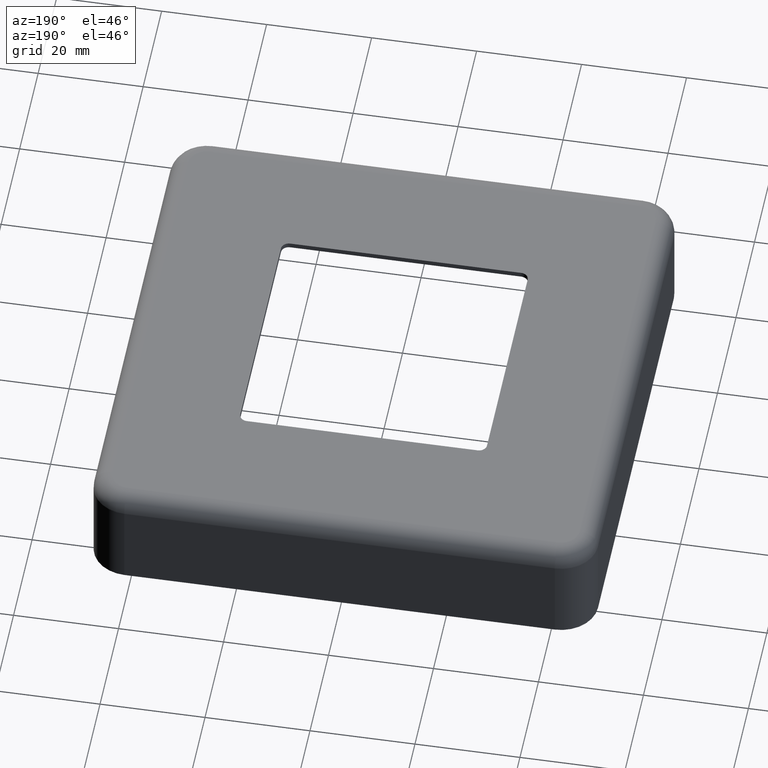
[diagram: clean part render]
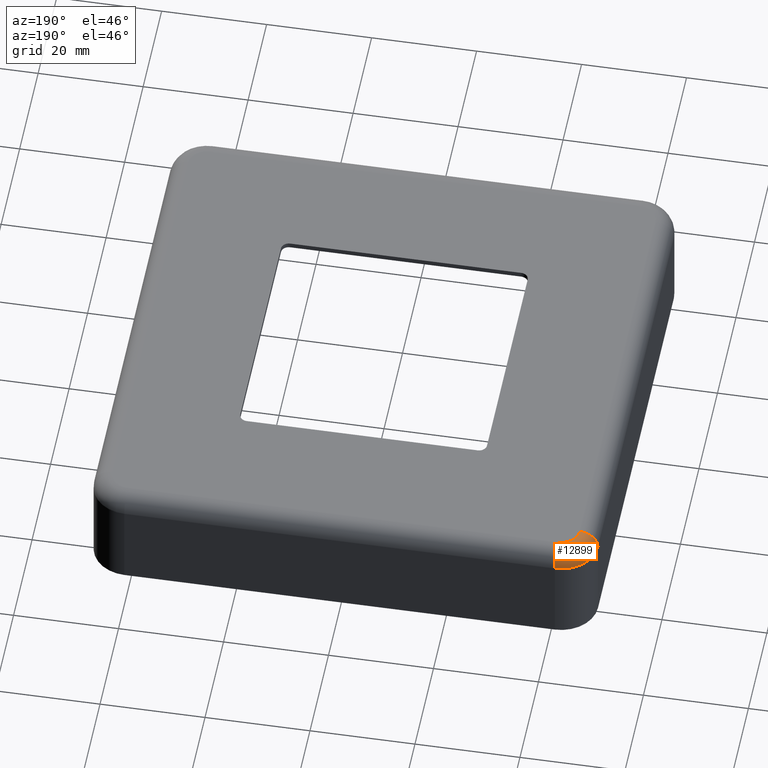
[diagram: same view with one face highlighted and labeled with its STEP entity id]
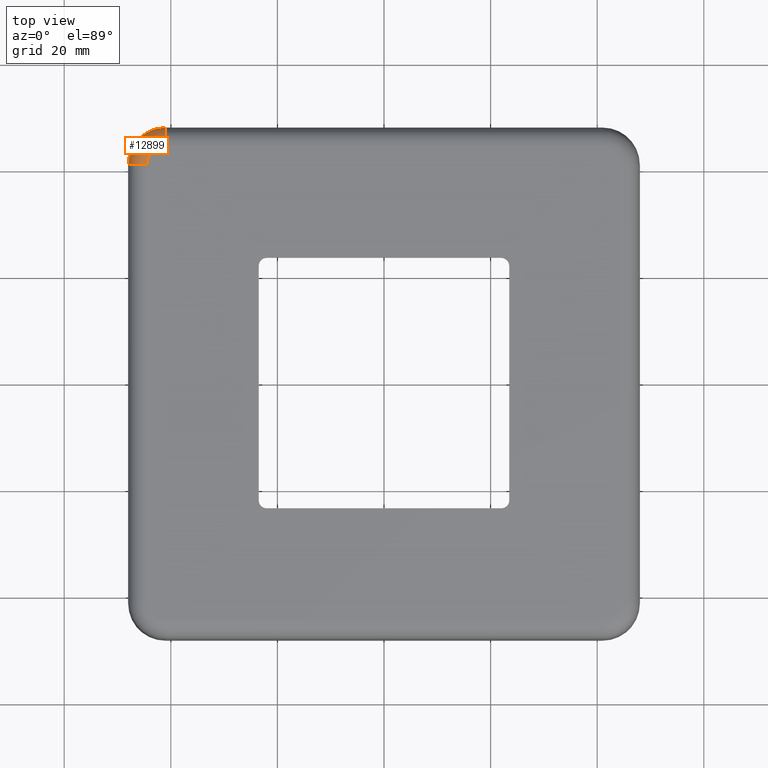
[diagram: same view with one face highlighted and labeled with its STEP entity id]
A machine part, auxiliary view. The second image highlights one B-rep face of the part: STEP entity #12899.
A second angle (top view) of the same face is appended — the face is thin or edge-on in the first view.
In plain terms, the highlighted toroidal blend (fillet) surface has major radius 3.5 mm and minor (blend) radius 3.5 mm.
Its self-contained STEP definition (entity closure, byte-faithful):
#153 = DIRECTION ( 'NONE',  ( 0.000000000000000000, -1.000000000000000000, 0.000000000000000000 ) ) ;
#411 = CARTESIAN_POINT ( 'NONE',  ( -41.00000000000001421, 44.49999999999999289, 20.00000000000000000 ) ) ;
#1030 = ORIENTED_EDGE ( 'NONE', *, *, #13445, .T. ) ;
#1403 = EDGE_CURVE ( 'NONE', #11541, #9631, #4921, .T. ) ;
#1514 = CARTESIAN_POINT ( 'NONE',  ( -44.50000000000001421, 40.99999999999999289, 16.50000000000000000 ) ) ;
#1711 = DIRECTION ( 'NONE',  ( -0.000000000000000000, 0.000000000000000000, 1.000000000000000000 ) ) ;
#2720 = EDGE_LOOP ( 'NONE', ( #10245, #14233, #13993, #1030 ) ) ;
#2794 = CARTESIAN_POINT ( 'NONE',  ( -41.00000000000001421, 40.99999999999999289, 16.50000000000000000 ) ) ;
#3364 = VERTEX_POINT ( 'NONE', #411 ) ;
#3493 = CARTESIAN_POINT ( 'NONE',  ( -48.00000000000001421, 40.99999999999999289, 16.50000000000000000 ) ) ;
#4052 = AXIS2_PLACEMENT_3D ( 'NONE', #6801, #10368, #11373 ) ;
#4123 = CARTESIAN_POINT ( 'NONE',  ( -41.00000000000001421, 40.99999999999999289, 16.50000000000000000 ) ) ;
#4812 = CARTESIAN_POINT ( 'NONE',  ( -41.00000000000000711, 47.99999999999999289, 16.50000000000000000 ) ) ;
#4921 = CIRCLE ( 'NONE', #10819, 3.499999999999999556 ) ;
#5624 = AXIS2_PLACEMENT_3D ( 'NONE', #2794, #1711, #10850 ) ;
#6425 = AXIS2_PLACEMENT_3D ( 'NONE', #6843, #10224, #7948 ) ;
#6801 = CARTESIAN_POINT ( 'NONE',  ( -41.00000000000001421, 44.49999999999999289, 16.50000000000000000 ) ) ;
#6843 = CARTESIAN_POINT ( 'NONE',  ( -41.00000000000001421, 40.99999999999999289, 20.00000000000000000 ) ) ;
#7195 = EDGE_CURVE ( 'NONE', #11588, #3364, #14025, .T. ) ;
#7307 = CIRCLE ( 'NONE', #6425, 3.500000000000003109 ) ;
#7948 = DIRECTION ( 'NONE',  ( 1.000000000000000000, 0.000000000000000000, 0.000000000000000000 ) ) ;
#8054 = AXIS2_PLACEMENT_3D ( 'NONE', #4123, #13144, #8715 ) ;
#8715 = DIRECTION ( 'NONE',  ( 1.000000000000000000, 0.000000000000000000, 0.000000000000000000 ) ) ;
#9548 = DIRECTION ( 'NONE',  ( 0.000000000000000000, 0.000000000000000000, -1.000000000000000000 ) ) ;
#9631 = VERTEX_POINT ( 'NONE', #3493 ) ;
#10184 = EDGE_CURVE ( 'NONE', #11588, #9631, #12207, .T. ) ;
#10224 = DIRECTION ( 'NONE',  ( 0.000000000000000000, -0.000000000000000000, -1.000000000000000000 ) ) ;
#10245 = ORIENTED_EDGE ( 'NONE', *, *, #7195, .F. ) ;
#10368 = DIRECTION ( 'NONE',  ( 1.000000000000000000, 0.000000000000000000, 0.000000000000000000 ) ) ;
#10460 = CARTESIAN_POINT ( 'NONE',  ( -44.50000000000001421, 40.99999999999998579, 20.00000000000000000 ) ) ;
#10819 = AXIS2_PLACEMENT_3D ( 'NONE', #1514, #153, #9548 ) ;
#10850 = DIRECTION ( 'NONE',  ( 1.000000000000000000, 0.000000000000000000, 0.000000000000000000 ) ) ;
#11098 = FACE_OUTER_BOUND ( 'NONE', #2720, .T. ) ;
#11373 = DIRECTION ( 'NONE',  ( 0.000000000000000000, 0.000000000000000000, -1.000000000000000000 ) ) ;
#11541 = VERTEX_POINT ( 'NONE', #10460 ) ;
#11588 = VERTEX_POINT ( 'NONE', #4812 ) ;
#12207 = CIRCLE ( 'NONE', #5624, 6.999999999999999112 ) ;
#12899 = ADVANCED_FACE ( 'NONE', ( #11098 ), #14700, .T. ) ;
#13144 = DIRECTION ( 'NONE',  ( -0.000000000000000000, 0.000000000000000000, 1.000000000000000000 ) ) ;
#13445 = EDGE_CURVE ( 'NONE', #11541, #3364, #7307, .T. ) ;
#13993 = ORIENTED_EDGE ( 'NONE', *, *, #1403, .F. ) ;
#14025 = CIRCLE ( 'NONE', #4052, 3.499999999999999556 ) ;
#14233 = ORIENTED_EDGE ( 'NONE', *, *, #10184, .T. ) ;
#14700 = TOROIDAL_SURFACE ( 'NONE', #8054, 3.500000000000000000, 3.500000000000000000 ) ;